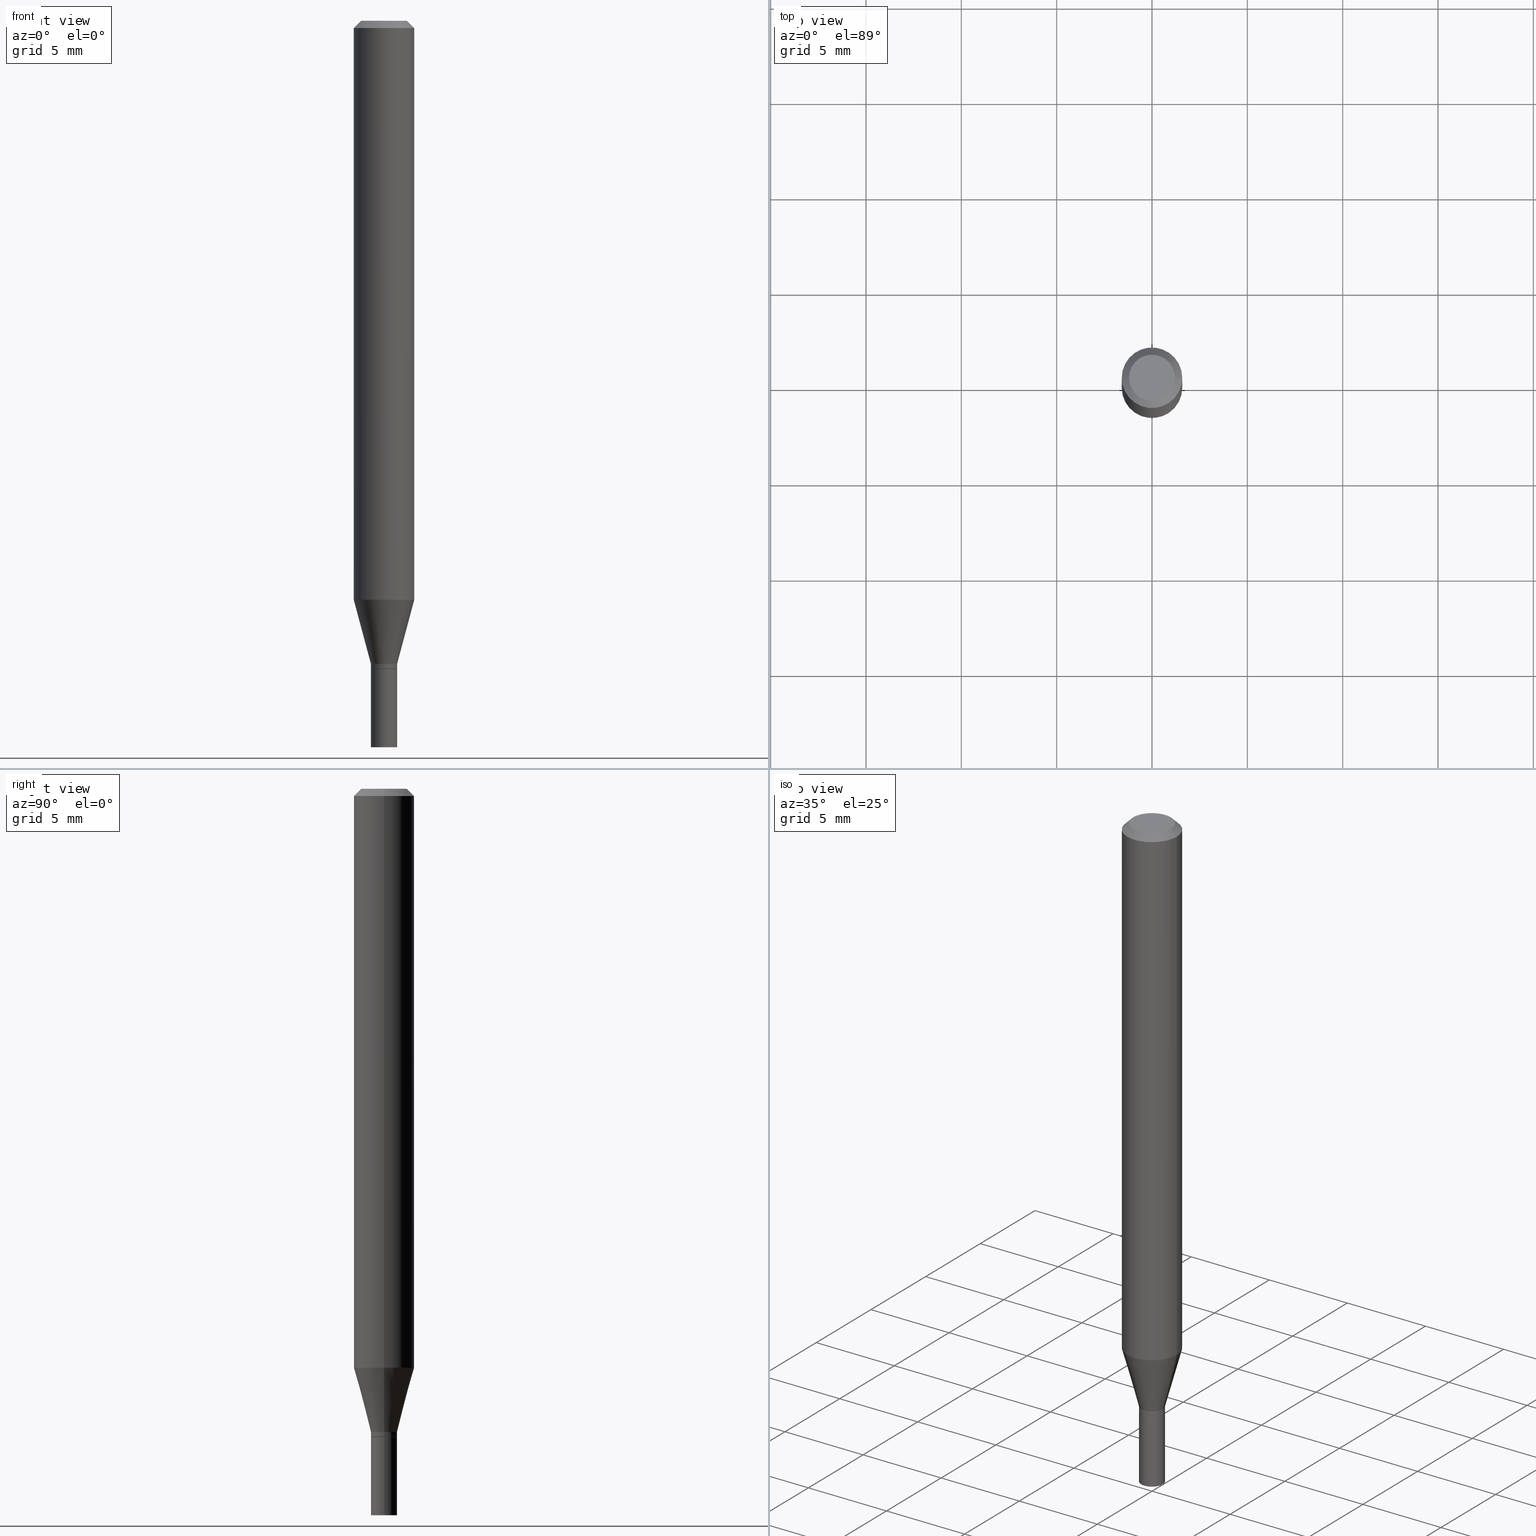
[diagram: canonical four-view strip — front | top / right | iso, engineering-drawing reading convention]
A machine part, canonical four-view strip (front | top / right | iso — engineering-drawing reading convention). The complete STEP part file that produces these views, byte-faithful:
ISO-10303-21;
HEADER;
FILE_DESCRIPTION (( 'STEP AP203' ),
    '1' );
FILE_NAME ('01205.STEP',
    '2024-03-20T00:00:39',
    ( '' ),
    ( '' ),
    'SwSTEP 2.0',
    'SolidWorks 2023',
    '' );
FILE_SCHEMA (( 'CONFIG_CONTROL_DESIGN' ));
ENDSEC;

DATA;
#1 = EDGE_LOOP ( 'NONE', ( #366, #330, #279, #217 ) ) ;
#2 = DIRECTION ( 'NONE',  ( 1.000000000000000000, -6.982962677686261189E-15, 0.000000000000000000 ) ) ;
#3 = FACE_OUTER_BOUND ( 'NONE', #150, .T. ) ;
#4 = AXIS2_PLACEMENT_3D ( 'NONE', #321, #285, #116 ) ;
#5 = VECTOR ( 'NONE', #158, 39.37007874015748143 ) ;
#6 = CARTESIAN_POINT ( 'NONE',  ( 0.02699999999999999969, -5.425762000562247662E-15, -1.500000000000000222 ) ) ;
#7 = FACE_OUTER_BOUND ( 'NONE', #346, .T. ) ;
#8 = EDGE_CURVE ( 'NONE', #118, #324, #397, .T. ) ;
#9 = ORIENTED_EDGE ( 'NONE', *, *, #145, .T. ) ;
#10 = PLANE ( 'NONE',  #437 ) ;
#11 = EDGE_LOOP ( 'NONE', ( #420, #334, #426, #277 ) ) ;
#12 = VECTOR ( 'NONE', #371, 39.37007874015748143 ) ;
#13 = PERSON_AND_ORGANIZATION_ROLE ( 'creator' ) ;
#14 = DIRECTION ( 'NONE',  ( 1.000000000000000000, -6.982962677686279332E-15, 0.000000000000000000 ) ) ;
#15 = VERTEX_POINT ( 'NONE', #6 ) ;
#16 = CYLINDRICAL_SURFACE ( 'NONE', #410, 0.02699999999999999969 ) ;
#17 = COORDINATED_UNIVERSAL_TIME_OFFSET ( 5, 0, .BEHIND. ) ;
#18 = APPROVAL_STATUS ( 'not_yet_approved' ) ;
#19 = DIRECTION ( 'NONE',  ( -0.7071067811865656694, 7.493145998870420424E-15, 0.7071067811865294761 ) ) ;
#20 = EDGE_CURVE ( 'NONE', #326, #214, #254, .T. ) ;
#21 = PRODUCT ( '01205', '01205', '', ( #296 ) ) ;
#22 = PERSON_AND_ORGANIZATION_ROLE ( 'design_supplier' ) ;
#23 = DIRECTION ( 'NONE',  ( -1.000000000000000000, 6.982962677686265922E-15, -4.876176775795935793E-29 ) ) ;
#24 = CARTESIAN_POINT ( 'NONE',  ( 3.247582574613861342E-29, -4.636687217983698072E-15, -1.328000000000000069 ) ) ;
#25 = EDGE_CURVE ( 'NONE', #148, #177, #271, .T. ) ;
#26 = LINE ( 'NONE', #110, #424 ) ;
#27 = CARTESIAN_POINT ( 'NONE',  ( 3.668203209277705088E-31, -5.237222008264718399E-17, -0.01499999999999999944 ) ) ;
#28 = ADVANCED_FACE ( 'NONE', ( #269 ), #291, .T. ) ;
#29 = DIRECTION ( 'NONE',  ( -2.445468806185136597E-29, 3.491481338843145583E-15, 1.000000000000000000 ) ) ;
#30 = CLOSED_SHELL ( 'NONE', ( #104, #152, #402, #414, #137, #76, #136, #245, #429, #248, #28, #392 ) ) ;
#31 = AXIS2_PLACEMENT_3D ( 'NONE', #354, #360, #2 ) ;
#32 = EDGE_CURVE ( 'NONE', #457, #177, #281, .T. ) ;
#33 = CYLINDRICAL_SURFACE ( 'NONE', #310, 0.02699999999999992684 ) ;
#34 = CC_DESIGN_APPROVAL ( #123, ( #445 ) ) ;
#35 = CIRCLE ( 'NONE', #54, 0.02649999999999999925 ) ;
#36 = CC_DESIGN_PERSON_AND_ORGANIZATION_ASSIGNMENT ( #442, #332, ( #445 ) ) ;
#37 = ORIENTED_EDGE ( 'NONE', *, *, #184, .F. ) ;
#38 = FACE_OUTER_BOUND ( 'NONE', #440, .T. ) ;
#39 = EDGE_CURVE ( 'NONE', #148, #81, #242, .T. ) ;
#40 = ORIENTED_EDGE ( 'NONE', *, *, #139, .T. ) ;
#41 =( LENGTH_UNIT ( ) NAMED_UNIT ( * ) SI_UNIT ( $, .METRE. ) );
#42 = DIRECTION ( 'NONE',  ( 1.000000000000000000, -6.982962677686261189E-15, 0.000000000000000000 ) ) ;
#43 = PRODUCT_DEFINITION ( 'UNKNOWN', '', #445, #393 ) ;
#44 = ORIENTED_EDGE ( 'NONE', *, *, #160, .T. ) ;
#45 = DIRECTION ( 'NONE',  ( 1.000000000000000000, -6.982962677686266711E-15, 0.000000000000000000 ) ) ;
#46 = AXIS2_PLACEMENT_3D ( 'NONE', #96, #262, #226 ) ;
#47 = CC_DESIGN_APPROVAL ( #453, ( #288 ) ) ;
#48 = DIRECTION ( 'NONE',  ( 1.000000000000000000, -6.982962677686262766E-15, 0.000000000000000000 ) ) ;
#49 = ORIENTED_EDGE ( 'NONE', *, *, #328, .T. ) ;
#50 = LINE ( 'NONE', #298, #85 ) ;
#51 = APPLICATION_PROTOCOL_DEFINITION ( 'international standard', 'config_control_design', 1994, #352 ) ;
#52 = DIRECTION ( 'NONE',  ( -2.445468806185136597E-29, 3.491481338843145583E-15, 1.000000000000000000 ) ) ;
#53 = APPROVAL_DATE_TIME ( #446, #69 ) ;
#54 = AXIS2_PLACEMENT_3D ( 'NONE', #294, #331, #441 ) ;
#55 = CARTESIAN_POINT ( 'NONE',  ( -0.02699999999999992337, -4.478009752047480997E-15, -1.337500000000000133 ) ) ;
#56 = CARTESIAN_POINT ( 'NONE',  ( -0.04749999999999999362, 3.578768372314215436E-16, 2.354505479474137135E-16 ) ) ;
#57 = ORIENTED_EDGE ( 'NONE', *, *, #284, .F. ) ;
#58 = CARTESIAN_POINT ( 'NONE',  ( -0.06250000000000000000, 3.840629472727444916E-16, -0.01499999999999999944 ) ) ;
#59 = CARTESIAN_POINT ( 'NONE',  ( -0.02699999999999992684, -4.444840679328471640E-15, -1.328000000000000069 ) ) ;
#60 = AXIS2_PLACEMENT_3D ( 'NONE', #395, #358, #45 ) ;
#61 = AXIS2_PLACEMENT_3D ( 'NONE', #367, #29, #306 ) ;
#62 = CARTESIAN_POINT ( 'NONE',  ( 3.270814528272620647E-29, -4.669856290702708218E-15, -1.337500000000000133 ) ) ;
#63 = PRODUCT_DEFINITION_SHAPE ( 'NONE', 'NONE',  #43 ) ;
#64 = AXIS2_PLACEMENT_3D ( 'NONE', #368, #52, #261 ) ;
#65 = AXIS2_PLACEMENT_3D ( 'NONE', #315, #423, #287 ) ;
#66 = ORIENTED_EDGE ( 'NONE', *, *, #126, .F. ) ;
#67 = ORIENTED_EDGE ( 'NONE', *, *, #20, .F. ) ;
#68 = DIRECTION ( 'NONE',  ( -2.445468806185136597E-29, 3.491481338843145583E-15, 1.000000000000000000 ) ) ;
#69 = APPROVAL ( #154, 'UNSPECIFIED' ) ;
#70 = ORIENTED_EDGE ( 'NONE', *, *, #168, .T. ) ;
#71 = DIRECTION ( 'NONE',  ( 1.000000000000000000, -6.982962677686266711E-15, 4.876176775795935793E-29 ) ) ;
#72 = VECTOR ( 'NONE', #400, 39.37007874015748143 ) ;
#73 = FACE_OUTER_BOUND ( 'NONE', #171, .T. ) ;
#74 = ORIENTED_EDGE ( 'NONE', *, *, #302, .F. ) ;
#75 = DIRECTION ( 'NONE',  ( 1.000000000000000000, -6.982962677686265922E-15, 4.876176775795935793E-29 ) ) ;
#76 = ADVANCED_FACE ( 'NONE', ( #401 ), #311, .T. ) ;
#77 = LINE ( 'NONE', #213, #434 ) ;
#78 = CC_DESIGN_PERSON_AND_ORGANIZATION_ASSIGNMENT ( #329, #22, ( #445 ) ) ;
#79 = ORIENTED_EDGE ( 'NONE', *, *, #317, .F. ) ;
#80 = CARTESIAN_POINT ( 'NONE',  ( -0.02699999999999999969, -4.762565481163196334E-15, -1.338000000000000078 ) ) ;
#81 = VERTEX_POINT ( 'NONE', #406 ) ;
#82 = CARTESIAN_POINT ( 'NONE',  ( -0.02699999999999992684, -4.087429996664271131E-15, -1.328000000000000069 ) ) ;
#83 = ORIENTED_EDGE ( 'NONE', *, *, #448, .F. ) ;
#84 = APPROVAL_PERSON_ORGANIZATION ( #370, #123, #125 ) ;
#85 = VECTOR ( 'NONE', #128, 39.37007874015748143 ) ;
#86 = PERSON_AND_ORGANIZATION ( #205, #378 ) ;
#87 = DIRECTION ( 'NONE',  ( 1.000000000000000000, -6.982962677686277755E-15, 0.000000000000000000 ) ) ;
#88 = ORIENTED_EDGE ( 'NONE', *, *, #284, .T. ) ;
#89 =( NAMED_UNIT ( * ) SI_UNIT ( $, .STERADIAN. ) SOLID_ANGLE_UNIT ( ) );
#90 = CALENDAR_DATE ( 2024, 19, 3 ) ;
#91 = EDGE_LOOP ( 'NONE', ( #105, #9, #142, #349 ) ) ;
#92 = CARTESIAN_POINT ( 'NONE',  ( -5.757869704046039586E-45, 8.220711943787967025E-31, 2.354505479474161294E-16 ) ) ;
#93 = LOCAL_TIME ( 20, 0, 39.00000000000000000, #407 ) ;
#94 = APPROVAL_DATE_TIME ( #337, #123 ) ;
#95 = ORIENTED_EDGE ( 'NONE', *, *, #273, .F. ) ;
#96 = CARTESIAN_POINT ( 'NONE',  ( 0.000000000000000000, 0.000000000000000000, 0.000000000000000000 ) ) ;
#97 = COORDINATED_UNIVERSAL_TIME_OFFSET ( 5, 0, .BEHIND. ) ;
#98 = DIRECTION ( 'NONE',  ( 1.000000000000000000, -6.982962677686266711E-15, 0.000000000000000000 ) ) ;
#99 = DIRECTION ( 'NONE',  ( -2.445468806185136597E-29, 3.491481338843145583E-15, 1.000000000000000000 ) ) ;
#100 = FACE_OUTER_BOUND ( 'NONE', #422, .T. ) ;
#101 = VECTOR ( 'NONE', #300, 39.37007874015748143 ) ;
#102 = DIRECTION ( 'NONE',  ( -2.438088387897960049E-29, 3.491481338843145188E-15, 1.000000000000000000 ) ) ;
#103 = CONICAL_SURFACE ( 'NONE', #344, 0.06250000000000000000, 0.7853981633974405074 ) ;
#104 = ADVANCED_FACE ( 'NONE', ( #373 ), #438, .T. ) ;
#105 = ORIENTED_EDGE ( 'NONE', *, *, #139, .F. ) ;
#106 = ORIENTED_EDGE ( 'NONE', *, *, #235, .F. ) ;
#107 = DIRECTION ( 'NONE',  ( -2.445468806185136597E-29, 3.491481338843145583E-15, 1.000000000000000000 ) ) ;
#108 = DIRECTION ( 'NONE',  ( 1.000000000000000000, -6.982962677686265922E-15, 4.876176775795935793E-29 ) ) ;
#109 = ADVANCED_FACE ( 'NONE', ( #187 ), #16, .T. ) ;
#110 = CARTESIAN_POINT ( 'NONE',  ( 0.02699999999999992684, -4.825227210281226768E-15, -1.328000000000000069 ) ) ;
#111 = ORIENTED_EDGE ( 'NONE', *, *, #203, .F. ) ;
#112 = CIRCLE ( 'NONE', #369, 0.02699999999999999969 ) ;
#113 = DIRECTION ( 'NONE',  ( -2.445468806185136597E-29, 3.491481338843145583E-15, 1.000000000000000000 ) ) ;
#114 = LINE ( 'NONE', #403, #5 ) ;
#115 = EDGE_CURVE ( 'NONE', #389, #161, #26, .T. ) ;
#116 = DIRECTION ( 'NONE',  ( 1.000000000000000000, -6.982962677686261189E-15, 0.000000000000000000 ) ) ;
#117 = DIRECTION ( 'NONE',  ( 1.000000000000000000, -6.982962677686261189E-15, 0.000000000000000000 ) ) ;
#118 = VERTEX_POINT ( 'NONE', #170 ) ;
#119 = DIRECTION ( 'NONE',  ( -1.000000000000000000, 6.982962677686266711E-15, 0.000000000000000000 ) ) ;
#120 = ORIENTED_EDGE ( 'NONE', *, *, #417, .F. ) ;
#121 = VECTOR ( 'NONE', #176, 39.37007874015748143 ) ;
#122 = AXIS2_PLACEMENT_3D ( 'NONE', #149, #428, #71 ) ;
#123 = APPROVAL ( #295, 'UNSPECIFIED' ) ;
#124 = ORIENTED_EDGE ( 'NONE', *, *, #307, .F. ) ;
#125 = APPROVAL_ROLE ( '' ) ;
#126 = EDGE_CURVE ( 'NONE', #175, #309, #77, .T. ) ;
#127 = CALENDAR_DATE ( 2024, 19, 3 ) ;
#128 = DIRECTION ( 'NONE',  ( -2.445468806185136877E-29, 3.491481338843145188E-15, 1.000000000000000000 ) ) ;
#129 = EDGE_LOOP ( 'NONE', ( #79, #120 ) ) ;
#130 = DIRECTION ( 'NONE',  ( 1.000000000000000000, -6.982962677686279332E-15, 0.000000000000000000 ) ) ;
#131 = DIRECTION ( 'NONE',  ( -2.445468806185136597E-29, 3.491481338843145583E-15, 1.000000000000000000 ) ) ;
#132 = CARTESIAN_POINT ( 'NONE',  ( 0.02699999999999992337, -4.858396283000236125E-15, -1.337500000000000133 ) ) ;
#133 = AXIS2_PLACEMENT_3D ( 'NONE', #225, #444, #130 ) ;
#134 = DATE_AND_TIME ( #304, #411 ) ;
#135 = CARTESIAN_POINT ( 'NONE',  ( -0.06250000000000000000, -1.669151162116327740E-15, -0.01499999999999999944 ) ) ;
#136 = ADVANCED_FACE ( 'NONE', ( #100 ), #408, .T. ) ;
#137 = ADVANCED_FACE ( 'NONE', ( #292 ), #320, .T. ) ;
#138 = EDGE_LOOP ( 'NONE', ( #83, #140, #355, #194 ) ) ;
#139 = EDGE_CURVE ( 'NONE', #386, #246, #335, .T. ) ;
#140 = ORIENTED_EDGE ( 'NONE', *, *, #413, .T. ) ;
#141 = CIRCLE ( 'NONE', #351, 0.02699999999999992684 ) ;
#142 = ORIENTED_EDGE ( 'NONE', *, *, #115, .T. ) ;
#143 = CARTESIAN_POINT ( 'NONE',  ( -0.02699999999999992684, 1.918465386552265303E-16, -1.328112474368820963E-30 ) ) ;
#144 = CARTESIAN_POINT ( 'NONE',  ( 0.06250000000000000000, -4.888073874380388472E-16, -0.01499999999999999944 ) ) ;
#145 = EDGE_CURVE ( 'NONE', #386, #389, #141, .T. ) ;
#146 = PLANE ( 'NONE',  #359 ) ;
#147 = LOCAL_TIME ( 20, 0, 39.00000000000000000, #290 ) ;
#148 = VERTEX_POINT ( 'NONE', #56 ) ;
#149 = CARTESIAN_POINT ( 'NONE',  ( 0.000000000000000000, 0.000000000000000000, 0.000000000000000000 ) ) ;
#150 = EDGE_LOOP ( 'NONE', ( #111, #363 ) ) ;
#151 = CARTESIAN_POINT ( 'NONE',  ( 2.923587783542086622E-29, -4.174108523850133238E-15, -1.195512196331304677 ) ) ;
#152 = ADVANCED_FACE ( 'NONE', ( #399 ), #198, .T. ) ;
#153 = ORIENTED_EDGE ( 'NONE', *, *, #203, .T. ) ;
#154 = APPROVAL_STATUS ( 'not_yet_approved' ) ;
#155 = DIRECTION ( 'NONE',  ( 1.000000000000000000, -6.982962677686279332E-15, 0.000000000000000000 ) ) ;
#156 = AXIS2_PLACEMENT_3D ( 'NONE', #224, #297, #87 ) ;
#157 = SECURITY_CLASSIFICATION_LEVEL ( 'unclassified' ) ;
#158 = DIRECTION ( 'NONE',  ( -2.445468806185136877E-29, 3.491481338843145188E-15, 1.000000000000000000 ) ) ;
#159 = DATE_AND_TIME ( #409, #181 ) ;
#160 = EDGE_CURVE ( 'NONE', #246, #161, #251, .T. ) ;
#161 = VERTEX_POINT ( 'NONE', #270 ) ;
#162 = DIMENSIONAL_EXPONENTS ( 1.000000000000000000, 0.000000000000000000, 0.000000000000000000, 0.000000000000000000, 0.000000000000000000, 0.000000000000000000, 0.000000000000000000 ) ;
#163 = PLANE ( 'NONE',  #209 ) ;
#164 = CIRCLE ( 'NONE', #219, 0.02699999999999992337 ) ;
#165 = DIRECTION ( 'NONE',  ( 1.000000000000000000, -6.982962677686277755E-15, 0.000000000000000000 ) ) ;
#166 = VECTOR ( 'NONE', #339, 39.37007874015748854 ) ;
#167 = COORDINATED_UNIVERSAL_TIME_OFFSET ( 5, 0, .BEHIND. ) ;
#168 = EDGE_CURVE ( 'NONE', #326, #175, #238, .T. ) ;
#169 = ORIENTED_EDGE ( 'NONE', *, *, #32, .F. ) ;
#170 = CARTESIAN_POINT ( 'NONE',  ( 0.02699999999999999969, -4.860142023669657629E-15, -1.338000000000000078 ) ) ;
#171 = EDGE_LOOP ( 'NONE', ( #124, #207, #249, #179 ) ) ;
#172 = DIRECTION ( 'NONE',  ( 2.438088387897960049E-29, -3.491481338843145188E-15, -1.000000000000000000 ) ) ;
#173 = AXIS2_PLACEMENT_3D ( 'NONE', #265, #365, #155 ) ;
#174 = AXIS2_PLACEMENT_3D ( 'NONE', #390, #280, #117 ) ;
#175 = VERTEX_POINT ( 'NONE', #342 ) ;
#176 = DIRECTION ( 'NONE',  ( -2.445468806185136877E-29, 3.491481338843145188E-15, 1.000000000000000000 ) ) ;
#177 = VERTEX_POINT ( 'NONE', #135 ) ;
#178 = DIRECTION ( 'NONE',  ( 1.000000000000000000, -6.982962677686279332E-15, 0.000000000000000000 ) ) ;
#179 = ORIENTED_EDGE ( 'NONE', *, *, #364, .T. ) ;
#180 = FACE_OUTER_BOUND ( 'NONE', #1, .T. ) ;
#181 = LOCAL_TIME ( 20, 0, 39.00000000000000000, #97 ) ;
#182 = CARTESIAN_POINT ( 'NONE',  ( -5.757869704046039586E-45, 8.220711943787967025E-31, 2.354505479474161294E-16 ) ) ;
#183 = ORIENTED_EDGE ( 'NONE', *, *, #448, .T. ) ;
#184 = EDGE_CURVE ( 'NONE', #15, #118, #272, .T. ) ;
#185 = ORIENTED_EDGE ( 'NONE', *, *, #412, .T. ) ;
#186 = PERSON_AND_ORGANIZATION ( #205, #378 ) ;
#187 = FACE_OUTER_BOUND ( 'NONE', #11, .T. ) ;
#188 = CONICAL_SURFACE ( 'NONE', #451, 0.06250000000000000000, 0.7853981633974405074 ) ;
#189 = APPLICATION_PROTOCOL_DEFINITION ( 'international standard', 'config_control_design', 1994, #379 ) ;
#190 = EDGE_LOOP ( 'NONE', ( #454, #347 ) ) ;
#191 = FACE_OUTER_BOUND ( 'NONE', #190, .T. ) ;
#192 = DIRECTION ( 'NONE',  ( 1.000000000000000000, -6.982962677686267499E-15, 4.852736867747366768E-29 ) ) ;
#193 = DIRECTION ( 'NONE',  ( 0.000000000000000000, 0.000000000000000000, 1.000000000000000000 ) ) ;
#194 = ORIENTED_EDGE ( 'NONE', *, *, #145, .F. ) ;
#195 = CALENDAR_DATE ( 2024, 19, 3 ) ;
#196 = DIRECTION ( 'NONE',  ( 0.7071067811865420216, -7.319954787623237113E-15, -0.7071067811865530128 ) ) ;
#197 = CIRCLE ( 'NONE', #256, 0.06250000000000000000 ) ;
#198 = CONICAL_SURFACE ( 'NONE', #156, 0.02649999999999999925, 0.7853981633974739252 ) ;
#199 = LINE ( 'NONE', #231, #12 ) ;
#200 = CC_DESIGN_DATE_AND_TIME_ASSIGNMENT ( #159, #436, ( #43 ) ) ;
#201 = DIRECTION ( 'NONE',  ( -2.445468806185136597E-29, 3.491481338843145583E-15, 1.000000000000000000 ) ) ;
#202 = PRODUCT_RELATED_PRODUCT_CATEGORY ( 'detail', '', ( #21 ) ) ;
#203 = EDGE_CURVE ( 'NONE', #175, #326, #35, .T. ) ;
#204 = AXIS2_PLACEMENT_3D ( 'NONE', #252, #107, #178 ) ;
#205 = PERSON ( 'UNSPECIFIED', 'UNSPECIFIED', 'UNSPECIFIED', ('UNSPECIFIED'), ('UNSPECIFIED'), ('UNSPECIFIED') ) ;
#206 = CARTESIAN_POINT ( 'NONE',  ( 3.316907271900976096E-16, 0.04749999999999999362, -4.812008962134135024E-17 ) ) ;
#207 = ORIENTED_EDGE ( 'NONE', *, *, #39, .F. ) ;
#208 = DIRECTION ( 'NONE',  ( 1.000000000000000000, -6.982962677686267499E-15, 4.852736867747366768E-29 ) ) ;
#209 = AXIS2_PLACEMENT_3D ( 'NONE', #268, #234, #23 ) ;
#210 = CARTESIAN_POINT ( 'NONE',  ( 3.668203209277705088E-31, -5.237222008264718399E-17, -0.01499999999999999944 ) ) ;
#211 = DIRECTION ( 'NONE',  ( 0.2588190451025207395, 1.565188264969626109E-15, 0.9659258262890682012 ) ) ;
#212 = CYLINDRICAL_SURFACE ( 'NONE', #122, 0.06250000000000000000 ) ;
#213 = CARTESIAN_POINT ( 'NONE',  ( 0.02649999999999999925, -4.856650542330814622E-15, -1.338000000000000078 ) ) ;
#214 = VERTEX_POINT ( 'NONE', #55 ) ;
#215 = FACE_OUTER_BOUND ( 'NONE', #129, .T. ) ;
#216 = ADVANCED_FACE ( 'NONE', ( #191 ), #163, .F. ) ;
#217 = ORIENTED_EDGE ( 'NONE', *, *, #25, .F. ) ;
#218 = FACE_OUTER_BOUND ( 'NONE', #138, .T. ) ;
#219 = AXIS2_PLACEMENT_3D ( 'NONE', #258, #68, #286 ) ;
#220 = LINE ( 'NONE', #382, #323 ) ;
#221 = ORIENTED_EDGE ( 'NONE', *, *, #115, .F. ) ;
#222 = DIRECTION ( 'NONE',  ( 1.000000000000000000, -6.982962677686280910E-15, 0.000000000000000000 ) ) ;
#223 = CARTESIAN_POINT ( 'NONE',  ( 0.000000000000000000, 0.000000000000000000, 0.000000000000000000 ) ) ;
#224 = CARTESIAN_POINT ( 'NONE',  ( 3.272037262675712888E-29, -4.671602031372128143E-15, -1.338000000000000078 ) ) ;
#225 = CARTESIAN_POINT ( 'NONE',  ( 3.247582574613861342E-29, -4.636687217983698072E-15, -1.328000000000000069 ) ) ;
#226 = DIRECTION ( 'NONE',  ( 1.000000000000000000, -6.982962677686265922E-15, 4.876176775795936353E-29 ) ) ;
#227 = DATE_TIME_ROLE ( 'classification_date' ) ;
#228 = DIRECTION ( 'NONE',  ( -2.445468806185136597E-29, 3.491481338843145583E-15, 1.000000000000000000 ) ) ;
#229 = DATE_AND_TIME ( #90, #93 ) ;
#230 = ADVANCED_BREP_SHAPE_REPRESENTATION ( '01205', ( #384, #240, #460 ), #259 ) ;
#231 = CARTESIAN_POINT ( 'NONE',  ( 0.06250000000000000000, -4.364351673553916694E-16, 3.047610484872459871E-30 ) ) ;
#232 = ORIENTED_EDGE ( 'NONE', *, *, #328, .F. ) ;
#233 = DIRECTION ( 'NONE',  ( 1.000000000000000000, 0.000000000000000000, 0.000000000000000000 ) ) ;
#234 = DIRECTION ( 'NONE',  ( 2.438088387897960049E-29, -3.491481338843145188E-15, -1.000000000000000000 ) ) ;
#235 = EDGE_CURVE ( 'NONE', #161, #457, #199, .T. ) ;
#236 = AXIS2_PLACEMENT_3D ( 'NONE', #62, #345, #222 ) ;
#237 = CARTESIAN_POINT ( 'NONE',  ( 3.272037262675712888E-29, -4.671602031372128143E-15, -1.338000000000000078 ) ) ;
#238 = CIRCLE ( 'NONE', #425, 0.02649999999999999925 ) ;
#239 = CC_DESIGN_APPROVAL ( #69, ( #43 ) ) ;
#240 = MANIFOLD_SOLID_BREP ( 'Body-Move/Copy2[2]', #30 ) ;
#241 = DIRECTION ( 'NONE',  ( -1.000000000000000000, 6.982962677686266711E-15, 0.000000000000000000 ) ) ;
#242 = CIRCLE ( 'NONE', #340, 0.04749999999999999362 ) ;
#243 = SHAPE_DEFINITION_REPRESENTATION ( #63, #230 ) ;
#244 = APPROVAL_PERSON_ORGANIZATION ( #333, #453, #299 ) ;
#245 = ADVANCED_FACE ( 'NONE', ( #73 ), #188, .T. ) ;
#246 = VERTEX_POINT ( 'NONE', #463 ) ;
#247 = LINE ( 'NONE', #383, #338 ) ;
#248 = ADVANCED_FACE ( 'NONE', ( #3 ), #466, .F. ) ;
#249 = ORIENTED_EDGE ( 'NONE', *, *, #25, .T. ) ;
#250 = CARTESIAN_POINT ( 'NONE',  ( 3.584916967085606921E-29, -5.356492647442320375E-15, -1.500000000000000222 ) ) ;
#251 = CIRCLE ( 'NONE', #61, 0.06250000000000000000 ) ;
#252 = CARTESIAN_POINT ( 'NONE',  ( 3.247582574613861342E-29, -4.636687217983698072E-15, -1.328000000000000069 ) ) ;
#253 = EDGE_CURVE ( 'NONE', #324, #118, #112, .T. ) ;
#254 = LINE ( 'NONE', #455, #343 ) ;
#255 = CYLINDRICAL_SURFACE ( 'NONE', #65, 0.02699999999999999969 ) ;
#256 = AXIS2_PLACEMENT_3D ( 'NONE', #151, #432, #48 ) ;
#257 = ORIENTED_EDGE ( 'NONE', *, *, #8, .F. ) ;
#258 = CARTESIAN_POINT ( 'NONE',  ( 3.270814528272620647E-29, -4.669856290702708218E-15, -1.337500000000000133 ) ) ;
#259 =( GEOMETRIC_REPRESENTATION_CONTEXT ( 3 ) GLOBAL_UNCERTAINTY_ASSIGNED_CONTEXT ( ( #430 ) ) GLOBAL_UNIT_ASSIGNED_CONTEXT ( ( #264, #404, #89 ) ) REPRESENTATION_CONTEXT ( 'NONE', 'WORKASPACE' ) );
#260 = LENGTH_MEASURE_WITH_UNIT ( LENGTH_MEASURE( 0.02539999999999999897 ), #41 );
#261 = DIRECTION ( 'NONE',  ( 1.000000000000000000, -6.982962677686266711E-15, 4.876176775795935793E-29 ) ) ;
#262 = DIRECTION ( 'NONE',  ( -2.445468806185136597E-29, 3.491481338843145583E-15, 1.000000000000000000 ) ) ;
#263 = PERSON_AND_ORGANIZATION_ROLE ( 'classification_officer' ) ;
#264 =( CONVERSION_BASED_UNIT ( 'INCH', #260 ) LENGTH_UNIT ( ) NAMED_UNIT ( #162 ) );
#265 = CARTESIAN_POINT ( 'NONE',  ( 3.247582574613861342E-29, -4.636687217983698072E-15, -1.328000000000000069 ) ) ;
#266 = CIRCLE ( 'NONE', #374, 0.04749999999999999362 ) ;
#267 = APPROVAL_ROLE ( '' ) ;
#268 = CARTESIAN_POINT ( 'NONE',  ( 1.885399922975619024E-16, 0.02699999999999532982, -1.338000000000000078 ) ) ;
#269 = FACE_OUTER_BOUND ( 'NONE', #435, .T. ) ;
#270 = CARTESIAN_POINT ( 'NONE',  ( 0.06250000000000000000, -4.610543691205524908E-15, -1.195512196331304677 ) ) ;
#271 = LINE ( 'NONE', #58, #101 ) ;
#272 = LINE ( 'NONE', #416, #72 ) ;
#273 = EDGE_CURVE ( 'NONE', #309, #389, #114, .T. ) ;
#274 = CARTESIAN_POINT ( 'NONE',  ( 3.272037262675712888E-29, -4.671602031372128143E-15, -1.338000000000000078 ) ) ;
#275 = ORIENTED_EDGE ( 'NONE', *, *, #398, .F. ) ;
#276 = CLOSED_SHELL ( 'NONE', ( #380, #348, #109, #216 ) ) ;
#277 = ORIENTED_EDGE ( 'NONE', *, *, #253, .F. ) ;
#278 = CC_DESIGN_PERSON_AND_ORGANIZATION_ASSIGNMENT ( #439, #13, ( #43 ) ) ;
#279 = ORIENTED_EDGE ( 'NONE', *, *, #32, .T. ) ;
#280 = DIRECTION ( 'NONE',  ( -2.445468806185136597E-29, 3.491481338843145583E-15, 1.000000000000000000 ) ) ;
#281 = CIRCLE ( 'NONE', #459, 0.06250000000000000000 ) ;
#282 = ORIENTED_EDGE ( 'NONE', *, *, #20, .T. ) ;
#283 = DIRECTION ( 'NONE',  ( -2.445468806185136597E-29, 3.491481338843145583E-15, 1.000000000000000000 ) ) ;
#284 = EDGE_CURVE ( 'NONE', #246, #177, #50, .T. ) ;
#285 = DIRECTION ( 'NONE',  ( -2.445468806185136597E-29, 3.491481338843145583E-15, 1.000000000000000000 ) ) ;
#286 = DIRECTION ( 'NONE',  ( 1.000000000000000000, -6.982962677686280910E-15, 0.000000000000000000 ) ) ;
#287 = DIRECTION ( 'NONE',  ( 1.000000000000000000, -6.982962677686266711E-15, 4.876176775795935232E-29 ) ) ;
#288 = SECURITY_CLASSIFICATION ( '', '', #157 ) ;
#289 = EDGE_LOOP ( 'NONE', ( #318, #183, #275, #95 ) ) ;
#290 = COORDINATED_UNIVERSAL_TIME_OFFSET ( 5, 0, .BEHIND. ) ;
#291 = CONICAL_SURFACE ( 'NONE', #415, 0.02649999999999999925, 0.7853981633974739252 ) ;
#292 = FACE_OUTER_BOUND ( 'NONE', #443, .T. ) ;
#293 = APPROVAL_PERSON_ORGANIZATION ( #186, #69, #267 ) ;
#294 = CARTESIAN_POINT ( 'NONE',  ( 3.272037262675712888E-29, -4.671602031372128143E-15, -1.338000000000000078 ) ) ;
#295 = APPROVAL_STATUS ( 'not_yet_approved' ) ;
#296 = MECHANICAL_CONTEXT ( 'NONE', #352, 'mechanical' ) ;
#297 = DIRECTION ( 'NONE',  ( -2.445468806185136597E-29, 3.491481338843145583E-15, 1.000000000000000000 ) ) ;
#298 = CARTESIAN_POINT ( 'NONE',  ( -0.06250000000000000000, 4.440892098500626162E-16, -3.074334431409316114E-30 ) ) ;
#299 = APPROVAL_ROLE ( '' ) ;
#300 = DIRECTION ( 'NONE',  ( -0.7071067811865420216, 2.468850131082199474E-15, -0.7071067811865530128 ) ) ;
#301 = DIRECTION ( 'NONE',  ( 0.7071067811865656694, -2.468850131082446387E-15, 0.7071067811865294761 ) ) ;
#302 = EDGE_CURVE ( 'NONE', #309, #214, #375, .T. ) ;
#303 = CC_DESIGN_SECURITY_CLASSIFICATION ( #288, ( #445 ) ) ;
#304 = CALENDAR_DATE ( 2024, 19, 3 ) ;
#305 = CARTESIAN_POINT ( 'NONE',  ( -0.02699999999999999969, -4.762565481163196334E-15, -1.500000000000000222 ) ) ;
#306 = DIRECTION ( 'NONE',  ( 1.000000000000000000, -6.982962677686262766E-15, 0.000000000000000000 ) ) ;
#307 = EDGE_CURVE ( 'NONE', #81, #457, #220, .T. ) ;
#308 = ORIENTED_EDGE ( 'NONE', *, *, #413, .F. ) ;
#309 = VERTEX_POINT ( 'NONE', #132 ) ;
#310 = AXIS2_PLACEMENT_3D ( 'NONE', #465, #113, #387 ) ;
#311 = CONICAL_SURFACE ( 'NONE', #173, 0.02699999999999992684, 0.2617993877991494633 ) ;
#312 = CIRCLE ( 'NONE', #174, 0.02699999999999999969 ) ;
#313 = VERTEX_POINT ( 'NONE', #305 ) ;
#314 = DIRECTION ( 'NONE',  ( -1.000000000000000000, 6.982962677686265922E-15, -4.876176775795935793E-29 ) ) ;
#315 = CARTESIAN_POINT ( 'NONE',  ( 0.000000000000000000, 0.000000000000000000, 0.000000000000000000 ) ) ;
#316 = DIRECTION ( 'NONE',  ( -2.445468806185136597E-29, 3.491481338843145583E-15, 1.000000000000000000 ) ) ;
#317 = EDGE_CURVE ( 'NONE', #15, #313, #312, .T. ) ;
#318 = ORIENTED_EDGE ( 'NONE', *, *, #302, .T. ) ;
#319 = FACE_OUTER_BOUND ( 'NONE', #353, .T. ) ;
#320 = CONICAL_SURFACE ( 'NONE', #133, 0.02699999999999992684, 0.2617993877991494633 ) ;
#321 = CARTESIAN_POINT ( 'NONE',  ( 3.272037262675712888E-29, -4.671602031372128143E-15, -1.338000000000000078 ) ) ;
#322 = DIRECTION ( 'NONE',  ( 2.445468806185136597E-29, -3.491481338843145583E-15, -1.000000000000000000 ) ) ;
#323 = VECTOR ( 'NONE', #196, 39.37007874015748143 ) ;
#324 = VERTEX_POINT ( 'NONE', #80 ) ;
#325 = DIRECTION ( 'NONE',  ( -2.445468806185136877E-29, 3.491481338843145188E-15, 1.000000000000000000 ) ) ;
#326 = VERTEX_POINT ( 'NONE', #427 ) ;
#327 = PERSON_AND_ORGANIZATION_ROLE ( 'design_owner' ) ;
#328 = EDGE_CURVE ( 'NONE', #161, #246, #197, .T. ) ;
#329 = PERSON_AND_ORGANIZATION ( #205, #378 ) ;
#330 = ORIENTED_EDGE ( 'NONE', *, *, #307, .T. ) ;
#331 = DIRECTION ( 'NONE',  ( -2.445468806185136597E-29, 3.491481338843145583E-15, 1.000000000000000000 ) ) ;
#332 = PERSON_AND_ORGANIZATION_ROLE ( 'creator' ) ;
#333 = PERSON_AND_ORGANIZATION ( #205, #378 ) ;
#334 = ORIENTED_EDGE ( 'NONE', *, *, #417, .T. ) ;
#335 = LINE ( 'NONE', #59, #166 ) ;
#336 = CC_DESIGN_DATE_AND_TIME_ASSIGNMENT ( #229, #227, ( #288 ) ) ;
#337 = DATE_AND_TIME ( #195, #433 ) ;
#338 = VECTOR ( 'NONE', #325, 39.37007874015748143 ) ;
#339 = DIRECTION ( 'NONE',  ( -0.2588190451025207395, 5.211531920934546309E-15, 0.9659258262890682012 ) ) ;
#340 = AXIS2_PLACEMENT_3D ( 'NONE', #92, #228, #192 ) ;
#341 = DIRECTION ( 'NONE',  ( 1.000000000000000000, -6.982962677686266711E-15, 4.876176775795935232E-29 ) ) ;
#342 = CARTESIAN_POINT ( 'NONE',  ( 0.02649999999999999925, -4.856650542330814622E-15, -1.338000000000000078 ) ) ;
#343 = VECTOR ( 'NONE', #19, 39.37007874015748143 ) ;
#344 = AXIS2_PLACEMENT_3D ( 'NONE', #356, #322, #119 ) ;
#345 = DIRECTION ( 'NONE',  ( -2.445468806185136597E-29, 3.491481338843145583E-15, 1.000000000000000000 ) ) ;
#346 = EDGE_LOOP ( 'NONE', ( #49, #88, #169, #106 ) ) ;
#347 = ORIENTED_EDGE ( 'NONE', *, *, #253, .T. ) ;
#348 = ADVANCED_FACE ( 'NONE', ( #215 ), #146, .F. ) ;
#349 = ORIENTED_EDGE ( 'NONE', *, *, #160, .F. ) ;
#350 = CARTESIAN_POINT ( 'NONE',  ( 0.02699999999999992684, -4.825227210281226768E-15, -1.328000000000000069 ) ) ;
#351 = AXIS2_PLACEMENT_3D ( 'NONE', #24, #362, #14 ) ;
#352 = APPLICATION_CONTEXT ( 'configuration controlled 3d designs of mechanical parts and assemblies' ) ;
#353 = EDGE_LOOP ( 'NONE', ( #464, #185, #257, #37 ) ) ;
#354 = CARTESIAN_POINT ( 'NONE',  ( 3.668203209277704895E-29, -5.237222008264718177E-15, -1.500000000000000222 ) ) ;
#355 = ORIENTED_EDGE ( 'NONE', *, *, #273, .T. ) ;
#356 = CARTESIAN_POINT ( 'NONE',  ( 3.668203209277705088E-31, -5.237222008264718399E-17, -0.01499999999999999944 ) ) ;
#357 = ORIENTED_EDGE ( 'NONE', *, *, #398, .T. ) ;
#358 = DIRECTION ( 'NONE',  ( -2.445468806185136597E-29, 3.491481338843145583E-15, 1.000000000000000000 ) ) ;
#359 = AXIS2_PLACEMENT_3D ( 'NONE', #250, #421, #75 ) ;
#360 = DIRECTION ( 'NONE',  ( -2.445468806185136597E-29, 3.491481338843145583E-15, 1.000000000000000000 ) ) ;
#361 = PERSON_AND_ORGANIZATION ( #205, #378 ) ;
#362 = DIRECTION ( 'NONE',  ( -2.445468806185136597E-29, 3.491481338843145583E-15, 1.000000000000000000 ) ) ;
#363 = ORIENTED_EDGE ( 'NONE', *, *, #168, .F. ) ;
#364 = EDGE_CURVE ( 'NONE', #177, #457, #458, .T. ) ;
#365 = DIRECTION ( 'NONE',  ( -2.445468806185136597E-29, 3.491481338843145583E-15, 1.000000000000000000 ) ) ;
#366 = ORIENTED_EDGE ( 'NONE', *, *, #376, .F. ) ;
#367 = CARTESIAN_POINT ( 'NONE',  ( 2.923587783542086622E-29, -4.174108523850133238E-15, -1.195512196331304677 ) ) ;
#368 = CARTESIAN_POINT ( 'NONE',  ( 0.000000000000000000, 0.000000000000000000, 0.000000000000000000 ) ) ;
#369 = AXIS2_PLACEMENT_3D ( 'NONE', #274, #316, #42 ) ;
#370 = PERSON_AND_ORGANIZATION ( #205, #378 ) ;
#371 = DIRECTION ( 'NONE',  ( -2.445468806185136877E-29, 3.491481338843145188E-15, 1.000000000000000000 ) ) ;
#372 = ORIENTED_EDGE ( 'NONE', *, *, #364, .F. ) ;
#373 = FACE_OUTER_BOUND ( 'NONE', #289, .T. ) ;
#374 = AXIS2_PLACEMENT_3D ( 'NONE', #182, #283, #208 ) ;
#375 = CIRCLE ( 'NONE', #236, 0.02699999999999992337 ) ;
#376 = EDGE_CURVE ( 'NONE', #81, #148, #266, .T. ) ;
#377 = CC_DESIGN_PERSON_AND_ORGANIZATION_ASSIGNMENT ( #361, #263, ( #288 ) ) ;
#378 = ORGANIZATION ( 'UNSPECIFIED', 'UNSPECIFIED', '' ) ;
#379 = APPLICATION_CONTEXT ( 'configuration controlled 3d designs of mechanical parts and assemblies' ) ;
#380 = ADVANCED_FACE ( 'NONE', ( #319 ), #255, .T. ) ;
#381 = ORIENTED_EDGE ( 'NONE', *, *, #235, .T. ) ;
#382 = CARTESIAN_POINT ( 'NONE',  ( 0.06250000000000000000, -4.811533449433679005E-16, -0.01499999999999999944 ) ) ;
#383 = CARTESIAN_POINT ( 'NONE',  ( -0.02699999999999999969, 1.918465386552270480E-16, -1.328112474368824466E-30 ) ) ;
#384 = MANIFOLD_SOLID_BREP ( 'Body-Move/Copy2[1]', #276 ) ;
#385 = AXIS2_PLACEMENT_3D ( 'NONE', #388, #102, #108 ) ;
#386 = VERTEX_POINT ( 'NONE', #82 ) ;
#387 = DIRECTION ( 'NONE',  ( 1.000000000000000000, -6.982962677686265922E-15, 4.876176775795936353E-29 ) ) ;
#388 = CARTESIAN_POINT ( 'NONE',  ( 3.272037262675712888E-29, -4.671602031372128143E-15, -1.338000000000000078 ) ) ;
#389 = VERTEX_POINT ( 'NONE', #350 ) ;
#390 = CARTESIAN_POINT ( 'NONE',  ( 3.668203209277704895E-29, -5.237222008264718177E-15, -1.500000000000000222 ) ) ;
#391 = DIRECTION ( 'NONE',  ( -2.445468806185136597E-29, 3.491481338843145583E-15, 1.000000000000000000 ) ) ;
#392 = ADVANCED_FACE ( 'NONE', ( #218 ), #33, .T. ) ;
#393 = DESIGN_CONTEXT ( 'detailed design', #379, 'design' ) ;
#394 = ORIENTED_EDGE ( 'NONE', *, *, #376, .T. ) ;
#395 = CARTESIAN_POINT ( 'NONE',  ( 3.668203209277705088E-31, -5.237222008264718399E-17, -0.01499999999999999944 ) ) ;
#396 = CIRCLE ( 'NONE', #204, 0.02699999999999992684 ) ;
#397 = CIRCLE ( 'NONE', #4, 0.02699999999999999969 ) ;
#398 = EDGE_CURVE ( 'NONE', #389, #386, #396, .T. ) ;
#399 = FACE_OUTER_BOUND ( 'NONE', #461, .T. ) ;
#400 = DIRECTION ( 'NONE',  ( -2.445468806185136877E-29, 3.491481338843145188E-15, 1.000000000000000000 ) ) ;
#401 = FACE_OUTER_BOUND ( 'NONE', #91, .T. ) ;
#402 = ADVANCED_FACE ( 'NONE', ( #180 ), #103, .T. ) ;
#403 = CARTESIAN_POINT ( 'NONE',  ( 0.02699999999999992684, -1.885399922975286717E-16, 1.316567729464899182E-30 ) ) ;
#404 =( NAMED_UNIT ( * ) PLANE_ANGLE_UNIT ( ) SI_UNIT ( $, .RADIAN. ) );
#405 = ORIENTED_EDGE ( 'NONE', *, *, #126, .T. ) ;
#406 = CARTESIAN_POINT ( 'NONE',  ( 0.04749999999999999362, -4.035134999187574186E-16, 2.354505479474186932E-16 ) ) ;
#407 = COORDINATED_UNIVERSAL_TIME_OFFSET ( 5, 0, .BEHIND. ) ;
#408 = CYLINDRICAL_SURFACE ( 'NONE', #64, 0.06250000000000000000 ) ;
#409 = CALENDAR_DATE ( 2024, 19, 3 ) ;
#410 = AXIS2_PLACEMENT_3D ( 'NONE', #431, #131, #341 ) ;
#411 = LOCAL_TIME ( 20, 0, 39.00000000000000000, #167 ) ;
#412 = EDGE_CURVE ( 'NONE', #313, #324, #247, .T. ) ;
#413 = EDGE_CURVE ( 'NONE', #214, #309, #164, .T. ) ;
#414 = ADVANCED_FACE ( 'NONE', ( #7 ), #212, .T. ) ;
#415 = AXIS2_PLACEMENT_3D ( 'NONE', #447, #99, #165 ) ;
#416 = CARTESIAN_POINT ( 'NONE',  ( 0.02699999999999999969, -1.885399922975291894E-16, 1.316567729464902510E-30 ) ) ;
#417 = EDGE_CURVE ( 'NONE', #313, #15, #418, .T. ) ;
#418 = CIRCLE ( 'NONE', #31, 0.02699999999999999969 ) ;
#419 = ORIENTED_EDGE ( 'NONE', *, *, #39, .T. ) ;
#420 = ORIENTED_EDGE ( 'NONE', *, *, #412, .F. ) ;
#421 = DIRECTION ( 'NONE',  ( -2.438088387897960049E-29, 3.491481338843145188E-15, 1.000000000000000000 ) ) ;
#422 = EDGE_LOOP ( 'NONE', ( #57, #44, #381, #372 ) ) ;
#423 = DIRECTION ( 'NONE',  ( -2.445468806185136597E-29, 3.491481338843145583E-15, 1.000000000000000000 ) ) ;
#424 = VECTOR ( 'NONE', #211, 39.37007874015748854 ) ;
#425 = AXIS2_PLACEMENT_3D ( 'NONE', #237, #201, #450 ) ;
#426 = ORIENTED_EDGE ( 'NONE', *, *, #184, .T. ) ;
#427 = CARTESIAN_POINT ( 'NONE',  ( -0.02649999999999999925, -4.480658979221591409E-15, -1.338000000000000078 ) ) ;
#428 = DIRECTION ( 'NONE',  ( -2.445468806185136597E-29, 3.491481338843145583E-15, 1.000000000000000000 ) ) ;
#429 = ADVANCED_FACE ( 'NONE', ( #38 ), #10, .F. ) ;
#430 = UNCERTAINTY_MEASURE_WITH_UNIT (LENGTH_MEASURE( 1.000000000000000082E-05 ), #264, 'distance_accuracy_value', 'NONE');
#431 = CARTESIAN_POINT ( 'NONE',  ( 0.000000000000000000, 0.000000000000000000, 0.000000000000000000 ) ) ;
#432 = DIRECTION ( 'NONE',  ( -2.445468806185136597E-29, 3.491481338843145583E-15, 1.000000000000000000 ) ) ;
#433 = LOCAL_TIME ( 20, 0, 39.00000000000000000, #17 ) ;
#434 = VECTOR ( 'NONE', #301, 39.37007874015748143 ) ;
#435 = EDGE_LOOP ( 'NONE', ( #67, #70, #405, #308 ) ) ;
#436 = DATE_TIME_ROLE ( 'creation_date' ) ;
#437 = AXIS2_PLACEMENT_3D ( 'NONE', #206, #172, #314 ) ;
#438 = CYLINDRICAL_SURFACE ( 'NONE', #46, 0.02699999999999992684 ) ;
#439 = PERSON_AND_ORGANIZATION ( #205, #378 ) ;
#440 = EDGE_LOOP ( 'NONE', ( #419, #394 ) ) ;
#441 = DIRECTION ( 'NONE',  ( 1.000000000000000000, -6.982962677686277755E-15, 0.000000000000000000 ) ) ;
#442 = PERSON_AND_ORGANIZATION ( #205, #378 ) ;
#443 = EDGE_LOOP ( 'NONE', ( #357, #40, #232, #221 ) ) ;
#444 = DIRECTION ( 'NONE',  ( -2.445468806185136597E-29, 3.491481338843145583E-15, 1.000000000000000000 ) ) ;
#445 = PRODUCT_DEFINITION_FORMATION_WITH_SPECIFIED_SOURCE ( 'ANY', '', #21, .NOT_KNOWN. ) ;
#446 = DATE_AND_TIME ( #127, #147 ) ;
#447 = CARTESIAN_POINT ( 'NONE',  ( 3.272037262675712888E-29, -4.671602031372128143E-15, -1.338000000000000078 ) ) ;
#448 = EDGE_CURVE ( 'NONE', #214, #386, #462, .T. ) ;
#449 = APPROVAL_DATE_TIME ( #134, #453 ) ;
#450 = DIRECTION ( 'NONE',  ( 1.000000000000000000, -6.982962677686277755E-15, 0.000000000000000000 ) ) ;
#451 = AXIS2_PLACEMENT_3D ( 'NONE', #210, #456, #241 ) ;
#452 = CC_DESIGN_PERSON_AND_ORGANIZATION_ASSIGNMENT ( #86, #327, ( #21 ) ) ;
#453 = APPROVAL ( #18, 'UNSPECIFIED' ) ;
#454 = ORIENTED_EDGE ( 'NONE', *, *, #8, .T. ) ;
#455 = CARTESIAN_POINT ( 'NONE',  ( -0.02649999999999999925, -4.483308206395701821E-15, -1.338000000000000078 ) ) ;
#456 = DIRECTION ( 'NONE',  ( 2.445468806185136597E-29, -3.491481338843145583E-15, -1.000000000000000000 ) ) ;
#457 = VERTEX_POINT ( 'NONE', #144 ) ;
#458 = CIRCLE ( 'NONE', #60, 0.06250000000000000000 ) ;
#459 = AXIS2_PLACEMENT_3D ( 'NONE', #27, #391, #98 ) ;
#460 = AXIS2_PLACEMENT_3D ( 'NONE', #223, #193, #233 ) ;
#461 = EDGE_LOOP ( 'NONE', ( #153, #282, #74, #66 ) ) ;
#462 = LINE ( 'NONE', #143, #121 ) ;
#463 = CARTESIAN_POINT ( 'NONE',  ( -0.06250000000000000000, -3.730019314000071411E-15, -1.195512196331304677 ) ) ;
#464 = ORIENTED_EDGE ( 'NONE', *, *, #317, .T. ) ;
#465 = CARTESIAN_POINT ( 'NONE',  ( 0.000000000000000000, 0.000000000000000000, 0.000000000000000000 ) ) ;
#466 = PLANE ( 'NONE',  #385 ) ;
ENDSEC;
END-ISO-10303-21;
